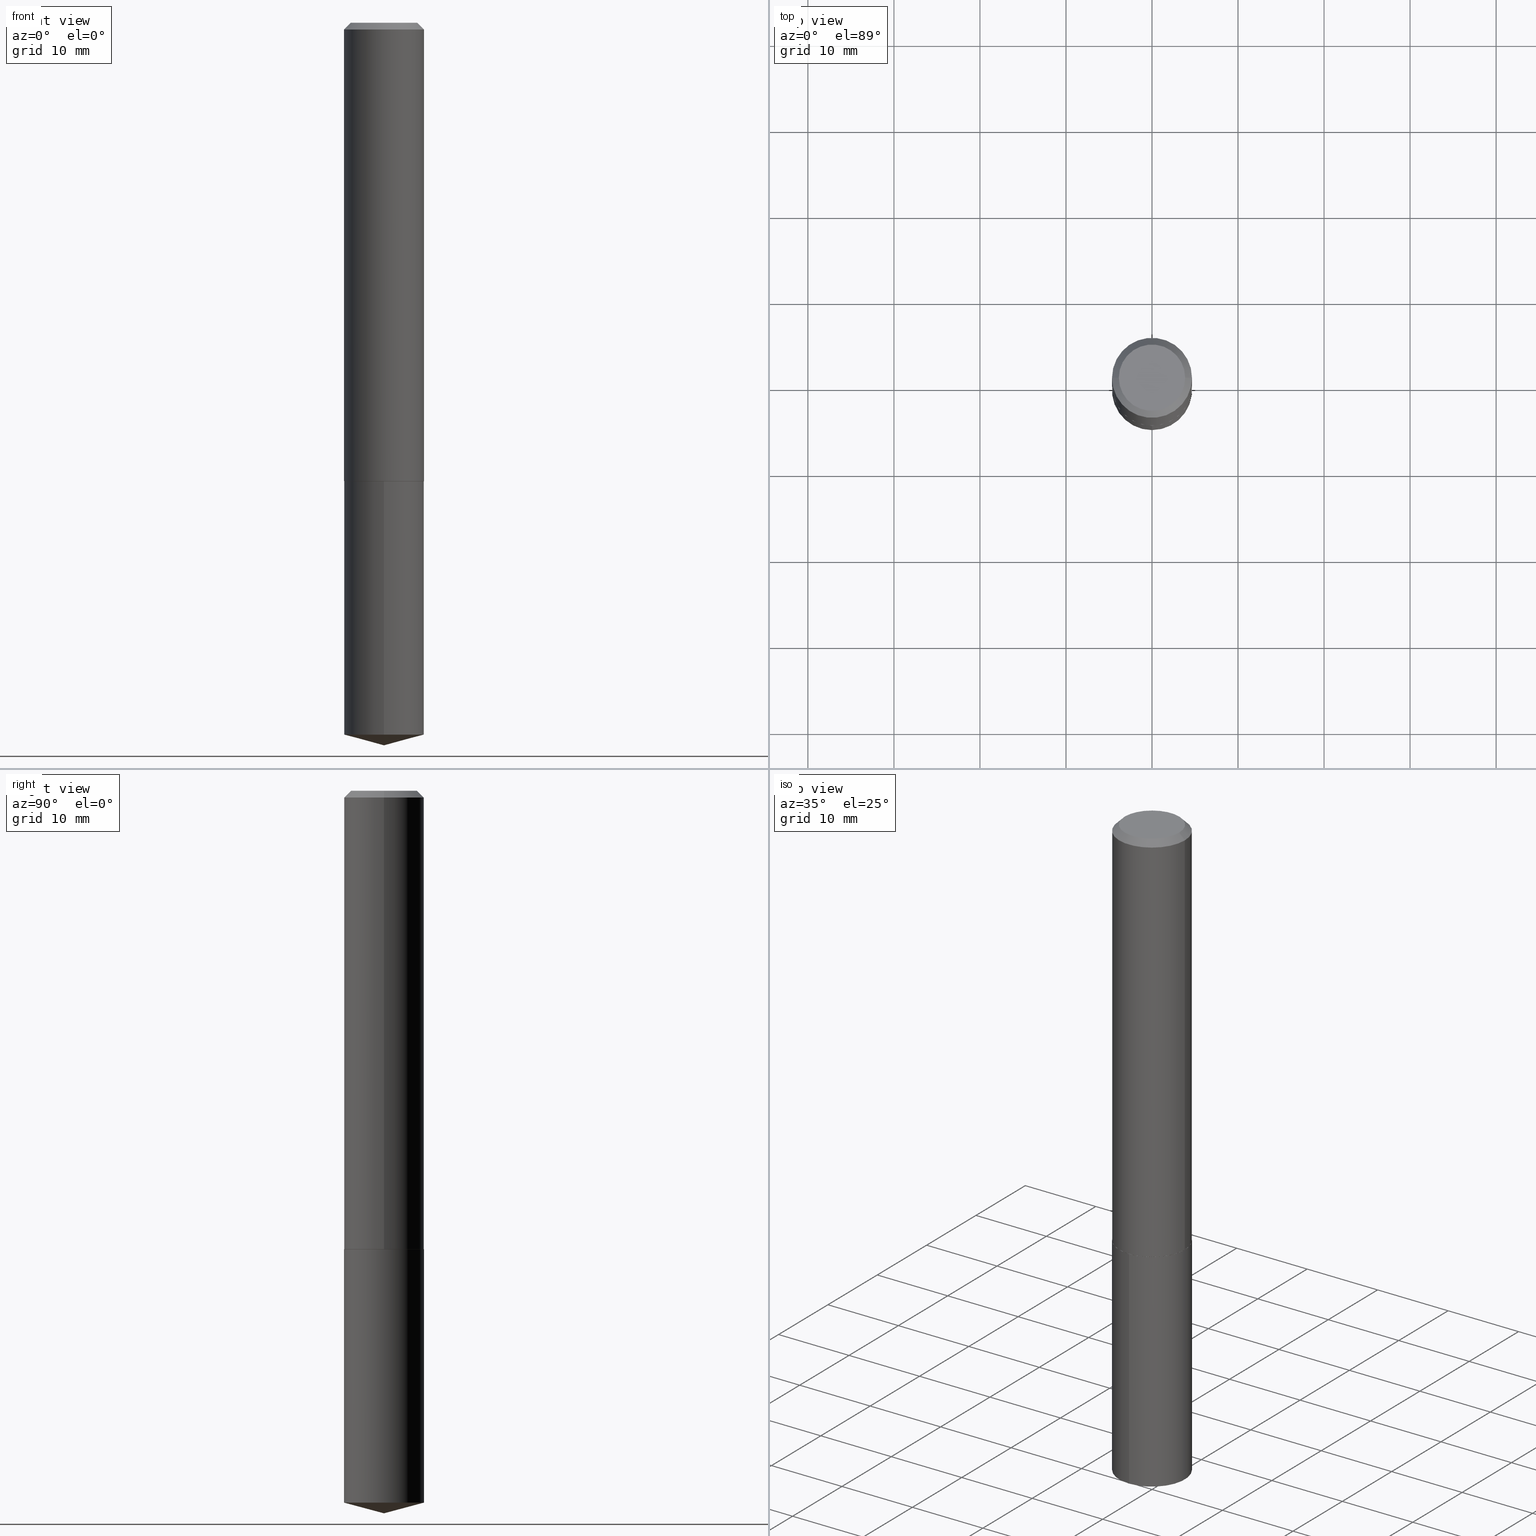
[diagram: canonical four-view strip — front | top / right | iso, engineering-drawing reading convention]
A machine part, canonical four-view strip (front | top / right | iso — engineering-drawing reading convention). The complete STEP part file that produces these views, byte-faithful:
ISO-10303-21;
HEADER;
FILE_DESCRIPTION (( 'STEP AP203' ),
    '1' );
FILE_NAME ('69028.STEP',
    '2024-04-23T14:27:54',
    ( '' ),
    ( '' ),
    'SwSTEP 2.0',
    'SolidWorks 2023',
    '' );
FILE_SCHEMA (( 'CONFIG_CONTROL_DESIGN' ));
ENDSEC;

DATA;
#1 = CYLINDRICAL_SURFACE ( 'NONE', #158, 0.1830499999999999905 ) ;
#2 = ORIENTED_EDGE ( 'NONE', *, *, #215, .F. ) ;
#3 = CIRCLE ( 'NONE', #386, 0.1825500000000003509 ) ;
#4 = ORIENTED_EDGE ( 'NONE', *, *, #27, .F. ) ;
#5 = FACE_OUTER_BOUND ( 'NONE', #187, .T. ) ;
#6 = ORIENTED_EDGE ( 'NONE', *, *, #261, .T. ) ;
#7 = LINE ( 'NONE', #13, #162 ) ;
#8 = CC_DESIGN_PERSON_AND_ORGANIZATION_ASSIGNMENT ( #138, #313, ( #12 ) ) ;
#9 = ADVANCED_FACE ( 'NONE', ( #278 ), #133, .T. ) ;
#10 = AXIS2_PLACEMENT_3D ( 'NONE', #185, #210, #155 ) ;
#11 = EDGE_LOOP ( 'NONE', ( #250, #100, #47, #40 ) ) ;
#12 = SECURITY_CLASSIFICATION ( '', '', #71 ) ;
#13 = CARTESIAN_POINT ( 'NONE',  ( 8.087356642219846075E-29, -1.154675418801469049E-14, -3.307100000000000151 ) ) ;
#14 = APPROVAL_ROLE ( '' ) ;
#15 = ORIENTED_EDGE ( 'NONE', *, *, #127, .T. ) ;
#16 = SHAPE_DEFINITION_REPRESENTATION ( #19, #90 ) ;
#17 = AXIS2_PLACEMENT_3D ( 'NONE', #55, #328, #145 ) ;
#18 = EDGE_LOOP ( 'NONE', ( #68, #388, #221 ) ) ;
#19 = PRODUCT_DEFINITION_SHAPE ( 'NONE', 'NONE',  #189 ) ;
#20 = APPROVAL_DATE_TIME ( #321, #129 ) ;
#21 = DIRECTION ( 'NONE',  ( -0.7071067811869339303, 7.493145998871750444E-15, 0.7071067811861611041 ) ) ;
#22 = DIRECTION ( 'NONE',  ( 1.000000000000000000, -6.982962677686265922E-15, 4.876176775795935793E-29 ) ) ;
#23 = DATE_TIME_ROLE ( 'creation_date' ) ;
#24 = CYLINDRICAL_SURFACE ( 'NONE', #350, 0.1830500000000001015 ) ;
#25 = DIRECTION ( 'NONE',  ( -2.445468806185136877E-29, 3.491481338843145188E-15, 1.000000000000000000 ) ) ;
#26 = CARTESIAN_POINT ( 'NONE',  ( -2.919964657261547595E-48, 4.168935659749483931E-34, 1.194030629168650700E-19 ) ) ;
#27 = EDGE_CURVE ( 'NONE', #374, #193, #247, .T. ) ;
#28 = UNCERTAINTY_MEASURE_WITH_UNIT (LENGTH_MEASURE( 1.000000000000000082E-05 ), #65, 'distance_accuracy_value', 'NONE');
#29 = DIRECTION ( 'NONE',  ( 2.445468806185136597E-29, -3.491481338843145583E-15, -1.000000000000000000 ) ) ;
#30 = AXIS2_PLACEMENT_3D ( 'NONE', #287, #166, #251 ) ;
#31 = DIRECTION ( 'NONE',  ( -2.445468806185136597E-29, 3.491481338843145583E-15, 1.000000000000000000 ) ) ;
#32 = ORIENTED_EDGE ( 'NONE', *, *, #325, .F. ) ;
#33 = EDGE_CURVE ( 'NONE', #97, #220, #7, .T. ) ;
#34 = CARTESIAN_POINT ( 'NONE',  ( 5.130349008495799778E-29, -7.324778700759037341E-15, -2.097900000000000542 ) ) ;
#35 = DIRECTION ( 'NONE',  ( -2.445468806185136597E-29, 3.491481338843145583E-15, 1.000000000000000000 ) ) ;
#36 = EDGE_LOOP ( 'NONE', ( #4, #15, #69, #124 ) ) ;
#37 = ORGANIZATION ( 'UNSPECIFIED', 'UNSPECIFIED', '' ) ;
#38 =( NAMED_UNIT ( * ) SI_UNIT ( $, .STERADIAN. ) SOLID_ANGLE_UNIT ( ) );
#39 = CC_DESIGN_SECURITY_CLASSIFICATION ( #12, ( #95 ) ) ;
#40 = ORIENTED_EDGE ( 'NONE', *, *, #233, .T. ) ;
#41 = EDGE_CURVE ( 'NONE', #265, #365, #115, .T. ) ;
#42 = CARTESIAN_POINT ( 'NONE',  ( 5.130349008495799778E-29, -7.324778700759037341E-15, -2.097900000000000542 ) ) ;
#43 = VECTOR ( 'NONE', #107, 39.37007874015748143 ) ;
#44 = APPROVAL_PERSON_ORGANIZATION ( #246, #129, #222 ) ;
#45 = DIRECTION ( 'NONE',  ( 1.000000000000000000, -6.982962677686266711E-15, 0.000000000000000000 ) ) ;
#46 = PERSON_AND_ORGANIZATION ( #184, #37 ) ;
#47 = ORIENTED_EDGE ( 'NONE', *, *, #359, .T. ) ;
#48 = APPROVAL_ROLE ( '' ) ;
#49 = CARTESIAN_POINT ( 'NONE',  ( -5.839929314523095191E-48, 8.337871319498967861E-34, 2.388061258337301399E-19 ) ) ;
#50 = PERSON_AND_ORGANIZATION_ROLE ( 'creator' ) ;
#51 = AXIS2_PLACEMENT_3D ( 'NONE', #170, #86, #349 ) ;
#52 = CARTESIAN_POINT ( 'NONE',  ( -0.1830500000000002403, -6.024130222950171258E-15, -2.097900000000000542 ) ) ;
#53 = LOCAL_TIME ( 10, 27, 54.00000000000000000, #348 ) ;
#54 = CC_DESIGN_PERSON_AND_ORGANIZATION_ASSIGNMENT ( #372, #341, ( #95 ) ) ;
#55 = CARTESIAN_POINT ( 'NONE',  ( 7.642090019328604414E-31, -1.091087918388490513E-16, -0.03125000000000021511 ) ) ;
#56 = MECHANICAL_CONTEXT ( 'NONE', #369, 'mechanical' ) ;
#57 = CARTESIAN_POINT ( 'NONE',  ( 5.131571742898890337E-29, -7.326524441428456478E-15, -2.098399999999999821 ) ) ;
#58 = CARTESIAN_POINT ( 'NONE',  ( 0.1830500000000001015, -1.278231318150471850E-15, 8.925841588094466461E-30 ) ) ;
#59 = AXIS2_PLACEMENT_3D ( 'NONE', #213, #264, #302 ) ;
#60 = EDGE_CURVE ( 'NONE', #365, #265, #201, .T. ) ;
#61 = DIRECTION ( 'NONE',  ( -2.445468806185136597E-29, 3.491481338843145583E-15, 1.000000000000000000 ) ) ;
#62 = DIRECTION ( 'NONE',  ( -6.982962677686264344E-15, -1.000000000000000000, 2.984810700534567995E-15 ) ) ;
#63 = CARTESIAN_POINT ( 'NONE',  ( -5.839929314523095191E-48, 8.337871319498967861E-34, 2.388061258337301399E-19 ) ) ;
#64 = AXIS2_PLACEMENT_3D ( 'NONE', #76, #199, #316 ) ;
#65 =( CONVERSION_BASED_UNIT ( 'INCH', #211 ) LENGTH_UNIT ( ) NAMED_UNIT ( #259 ) );
#66 = FACE_OUTER_BOUND ( 'NONE', #165, .T. ) ;
#67 = VERTEX_POINT ( 'NONE', #102 ) ;
#68 = ORIENTED_EDGE ( 'NONE', *, *, #33, .F. ) ;
#69 = ORIENTED_EDGE ( 'NONE', *, *, #92, .T. ) ;
#70 = ADVANCED_FACE ( 'NONE', ( #279 ), #345, .T. ) ;
#71 = SECURITY_CLASSIFICATION_LEVEL ( 'unclassified' ) ;
#72 = CIRCLE ( 'NONE', #135, 0.1825500000000003509 ) ;
#73 = DIRECTION ( 'NONE',  ( -2.445528654128284610E-29, 3.491395633182224159E-15, 1.000000000000000000 ) ) ;
#74 = CC_DESIGN_APPROVAL ( #339, ( #95 ) ) ;
#75 = PERSON_AND_ORGANIZATION_ROLE ( 'design_owner' ) ;
#76 = CARTESIAN_POINT ( 'NONE',  ( 0.000000000000000000, 0.000000000000000000, 0.000000000000000000 ) ) ;
#77 = DATE_AND_TIME ( #323, #53 ) ;
#78 = PRODUCT ( '69028', '69028', '', ( #56 ) ) ;
#79 = EDGE_LOOP ( 'NONE', ( #154, #240, #93, #347 ) ) ;
#80 = COORDINATED_UNIVERSAL_TIME_OFFSET ( 5, 0, .BEHIND. ) ;
#81 = CC_DESIGN_PERSON_AND_ORGANIZATION_ASSIGNMENT ( #46, #50, ( #95 ) ) ;
#82 = CIRCLE ( 'NONE', #59, 0.1830499999999999905 ) ;
#83 = CARTESIAN_POINT ( 'NONE',  ( 0.1830500000000000183, -1.387340109989320162E-15, -0.03125000000000021511 ) ) ;
#84 = EDGE_CURVE ( 'NONE', #367, #149, #310, .T. ) ;
#85 = COORDINATED_UNIVERSAL_TIME_OFFSET ( 5, 0, .BEHIND. ) ;
#86 = DIRECTION ( 'NONE',  ( 2.445468806185136597E-29, -3.491481338843145583E-15, -1.000000000000000000 ) ) ;
#87 = DIRECTION ( 'NONE',  ( -2.445528654128284891E-29, 3.491395633182223764E-15, 1.000000000000000000 ) ) ;
#88 = DIRECTION ( 'NONE',  ( -2.445468806185136597E-29, 3.491481338843145583E-15, 1.000000000000000000 ) ) ;
#89 = FACE_OUTER_BOUND ( 'NONE', #217, .T. ) ;
#90 = ADVANCED_BREP_SHAPE_REPRESENTATION ( '69028', ( #276, #266, #30 ), #203 ) ;
#91 = DIRECTION ( 'NONE',  ( -2.445528654128284891E-29, 3.491395633182223764E-15, 1.000000000000000000 ) ) ;
#92 = EDGE_CURVE ( 'NONE', #220, #117, #114, .T. ) ;
#93 = ORIENTED_EDGE ( 'NONE', *, *, #253, .T. ) ;
#94 = AXIS2_PLACEMENT_3D ( 'NONE', #34, #35, #230 ) ;
#95 = PRODUCT_DEFINITION_FORMATION_WITH_SPECIFIED_SOURCE ( 'ANY', '', #78, .NOT_KNOWN. ) ;
#96 = ORIENTED_EDGE ( 'NONE', *, *, #198, .F. ) ;
#97 = VERTEX_POINT ( 'NONE', #354 ) ;
#98 = ADVANCED_FACE ( 'NONE', ( #110 ), #255, .T. ) ;
#99 = APPROVAL_STATUS ( 'not_yet_approved' ) ;
#100 = ORIENTED_EDGE ( 'NONE', *, *, #84, .F. ) ;
#101 = CALENDAR_DATE ( 2024, 23, 4 ) ;
#102 = CARTESIAN_POINT ( 'NONE',  ( -0.1830500000000000183, -2.416295268490077926E-15, -0.03125000000000021511 ) ) ;
#103 = CC_DESIGN_APPROVAL ( #176, ( #12 ) ) ;
#104 = ORIENTED_EDGE ( 'NONE', *, *, #41, .F. ) ;
#105 = PERSON_AND_ORGANIZATION_ROLE ( 'creator' ) ;
#106 = EDGE_CURVE ( 'NONE', #265, #67, #226, .T. ) ;
#107 = DIRECTION ( 'NONE',  ( -2.445468806185136877E-29, 3.491481338843145188E-15, 1.000000000000000000 ) ) ;
#108 = VECTOR ( 'NONE', #229, 39.37007874015748143 ) ;
#109 = AXIS2_PLACEMENT_3D ( 'NONE', #159, #31, #370 ) ;
#110 = FACE_OUTER_BOUND ( 'NONE', #18, .T. ) ;
#111 = LOCAL_TIME ( 10, 27, 54.00000000000000000, #256 ) ;
#112 = DIRECTION ( 'NONE',  ( -1.000000000000000000, 6.982962677686265922E-15, -4.876176775795935793E-29 ) ) ;
#113 = DIRECTION ( 'NONE',  ( -6.982962677686264344E-15, -1.000000000000000000, 2.984810700534567995E-15 ) ) ;
#114 = LINE ( 'NONE', #297, #108 ) ;
#115 = CIRCLE ( 'NONE', #142, 0.1830500000000002403 ) ;
#116 = CARTESIAN_POINT ( 'NONE',  ( 0.1830500000000002403, -8.603010018909510375E-15, -2.097900000000000542 ) ) ;
#117 = VERTEX_POINT ( 'NONE', #206 ) ;
#118 = CC_DESIGN_PERSON_AND_ORGANIZATION_ASSIGNMENT ( #218, #75, ( #78 ) ) ;
#119 = CARTESIAN_POINT ( 'NONE',  ( 0.1830500000000000183, -1.364922950330927901E-15, -0.03125000000000021511 ) ) ;
#120 = ORIENTED_EDGE ( 'NONE', *, *, #198, .T. ) ;
#121 = DIRECTION ( 'NONE',  ( -0.7071067811865454633, 2.468850131082235761E-15, -0.7071067811865493491 ) ) ;
#122 = ADVANCED_FACE ( 'NONE', ( #379 ), #24, .T. ) ;
#123 = CYLINDRICAL_SURFACE ( 'NONE', #10, 0.1830499999999999905 ) ;
#124 = ORIENTED_EDGE ( 'NONE', *, *, #375, .F. ) ;
#125 = CARTESIAN_POINT ( 'NONE',  ( 5.130349008495799778E-29, -7.324778700759037341E-15, -2.097900000000000542 ) ) ;
#126 = CONICAL_SURFACE ( 'NONE', #373, 0.1830500000000000183, 0.7853981633974456145 ) ;
#127 = EDGE_CURVE ( 'NONE', #374, #220, #280, .T. ) ;
#128 = ORIENTED_EDGE ( 'NONE', *, *, #106, .T. ) ;
#129 = APPROVAL ( #99, 'UNSPECIFIED' ) ;
#130 = ORIENTED_EDGE ( 'NONE', *, *, #223, .F. ) ;
#131 = CALENDAR_DATE ( 2024, 23, 4 ) ;
#132 = ORIENTED_EDGE ( 'NONE', *, *, #127, .F. ) ;
#133 = CONICAL_SURFACE ( 'NONE', #356, 0.1830500000000002403, 0.7853981633979947308 ) ;
#134 = COORDINATED_UNIVERSAL_TIME_OFFSET ( 5, 0, .BEHIND. ) ;
#135 = AXIS2_PLACEMENT_3D ( 'NONE', #355, #88, #146 ) ;
#136 = ORIENTED_EDGE ( 'NONE', *, *, #60, .F. ) ;
#137 = CC_DESIGN_APPROVAL ( #129, ( #189 ) ) ;
#138 = PERSON_AND_ORGANIZATION ( #184, #37 ) ;
#139 = DIRECTION ( 'NONE',  ( -2.445468806185136597E-29, 3.491481338843145583E-15, 1.000000000000000000 ) ) ;
#140 = CARTESIAN_POINT ( 'NONE',  ( 0.000000000000000000, 0.000000000000000000, 0.000000000000000000 ) ) ;
#141 = APPROVAL_DATE_TIME ( #77, #339 ) ;
#142 = AXIS2_PLACEMENT_3D ( 'NONE', #125, #314, #284 ) ;
#143 = CONICAL_SURFACE ( 'NONE', #177, 146.9311341562559505, 1.308996938995748760 ) ;
#144 = DIRECTION ( 'NONE',  ( 1.000000000000000000, -6.982962677686265922E-15, 0.000000000000000000 ) ) ;
#145 = DIRECTION ( 'NONE',  ( 1.000000000000000000, -6.982962677686266711E-15, 0.000000000000000000 ) ) ;
#146 = DIRECTION ( 'NONE',  ( 1.000000000000000000, -6.982962677686265922E-15, 0.000000000000000000 ) ) ;
#147 = DIRECTION ( 'NONE',  ( -2.445528654128284891E-29, 3.491395633182223764E-15, 1.000000000000000000 ) ) ;
#148 = CIRCLE ( 'NONE', #286, 0.1830499999999999905 ) ;
#149 = VERTEX_POINT ( 'NONE', #383 ) ;
#150 = CC_DESIGN_DATE_AND_TIME_ASSIGNMENT ( #317, #23, ( #189 ) ) ;
#151 = ADVANCED_FACE ( 'NONE', ( #258 ), #335, .T. ) ;
#152 = APPROVAL_PERSON_ORGANIZATION ( #282, #339, #14 ) ;
#153 = CARTESIAN_POINT ( 'NONE',  ( 5.131571742898891458E-29, -7.326524441428458056E-15, -2.098400000000000709 ) ) ;
#154 = ORIENTED_EDGE ( 'NONE', *, *, #277, .F. ) ;
#155 = DIRECTION ( 'NONE',  ( -6.982962677686264344E-15, -1.000000000000000000, 2.984810700534567995E-15 ) ) ;
#156 = ORIENTED_EDGE ( 'NONE', *, *, #245, .F. ) ;
#157 = FACE_OUTER_BOUND ( 'NONE', #11, .T. ) ;
#158 = AXIS2_PLACEMENT_3D ( 'NONE', #304, #91, #62 ) ;
#159 = CARTESIAN_POINT ( 'NONE',  ( 7.642090019328604414E-31, -1.091087918388490513E-16, -0.03125000000000021511 ) ) ;
#160 = VERTEX_POINT ( 'NONE', #205 ) ;
#161 = DIRECTION ( 'NONE',  ( 1.000000000000000000, -6.982962677686266711E-15, 0.000000000000000000 ) ) ;
#162 = VECTOR ( 'NONE', #308, 39.37007874015748854 ) ;
#163 = CONICAL_SURFACE ( 'NONE', #94, 0.1830500000000002403, 0.7853981633979947308 ) ;
#164 = CARTESIAN_POINT ( 'NONE',  ( 1.300648477808914204E-15, 0.1830499999999926353, -2.098400000000001153 ) ) ;
#165 = EDGE_LOOP ( 'NONE', ( #6, #192, #32, #281 ) ) ;
#166 = DIRECTION ( 'NONE',  ( 0.000000000000000000, 0.000000000000000000, 1.000000000000000000 ) ) ;
#167 = VERTEX_POINT ( 'NONE', #83 ) ;
#168 = ADVANCED_FACE ( 'NONE', ( #89 ), #288, .F. ) ;
#169 = CIRCLE ( 'NONE', #17, 0.1830500000000000183 ) ;
#170 = CARTESIAN_POINT ( 'NONE',  ( 7.642090019328604414E-31, -1.091087918388490513E-16, -0.03125000000000021511 ) ) ;
#171 = LOCAL_TIME ( 10, 27, 54.00000000000000000, #134 ) ;
#172 = CARTESIAN_POINT ( 'NONE',  ( -8.819317344719817740E-28, 1.259099466481703146E-13, 36.06297874015748306 ) ) ;
#173 = DATE_AND_TIME ( #101, #171 ) ;
#174 = ADVANCED_FACE ( 'NONE', ( #318 ), #291, .F. ) ;
#175 = DIRECTION ( 'NONE',  ( 1.000000000000000000, -6.982962677686266711E-15, 4.876168073847652343E-29 ) ) ;
#176 = APPROVAL ( #315, 'UNSPECIFIED' ) ;
#177 = AXIS2_PLACEMENT_3D ( 'NONE', #172, #262, #301 ) ;
#178 = PLANE ( 'NONE',  #191 ) ;
#179 = CARTESIAN_POINT ( 'NONE',  ( -0.1830500000000001015, 1.300648477808864112E-15, -9.004110682711610994E-30 ) ) ;
#180 = DIRECTION ( 'NONE',  ( -6.982962677686264344E-15, -1.000000000000000000, 2.984810700534567995E-15 ) ) ;
#181 = EDGE_CURVE ( 'NONE', #160, #265, #381, .T. ) ;
#182 = CARTESIAN_POINT ( 'NONE',  ( 8.087610014530734022E-29, -1.154639449849693227E-14, -3.307100000000000151 ) ) ;
#183 = AXIS2_PLACEMENT_3D ( 'NONE', #384, #87, #358 ) ;
#184 = PERSON ( 'UNSPECIFIED', 'UNSPECIFIED', 'UNSPECIFIED', ('UNSPECIFIED'), ('UNSPECIFIED'), ('UNSPECIFIED') ) ;
#185 = CARTESIAN_POINT ( 'NONE',  ( 5.131571742898891458E-29, -7.326524441428458056E-15, -2.098400000000000709 ) ) ;
#186 = LINE ( 'NONE', #116, #327 ) ;
#187 = EDGE_LOOP ( 'NONE', ( #361, #120, #216, #104 ) ) ;
#188 = CC_DESIGN_PERSON_AND_ORGANIZATION_ASSIGNMENT ( #352, #105, ( #189 ) ) ;
#189 = PRODUCT_DEFINITION ( 'UNKNOWN', '', #95, #351 ) ;
#190 = CARTESIAN_POINT ( 'NONE',  ( -0.1830500000000002403, -6.024130222950171258E-15, -2.097900000000000542 ) ) ;
#191 = AXIS2_PLACEMENT_3D ( 'NONE', #26, #228, #112 ) ;
#192 = ORIENTED_EDGE ( 'NONE', *, *, #27, .T. ) ;
#193 = VERTEX_POINT ( 'NONE', #322 ) ;
#194 = ADVANCED_FACE ( 'NONE', ( #353 ), #178, .F. ) ;
#195 = ORIENTED_EDGE ( 'NONE', *, *, #33, .T. ) ;
#196 = CIRCLE ( 'NONE', #320, 0.1830499999999999905 ) ;
#197 = EDGE_LOOP ( 'NONE', ( #307, #271 ) ) ;
#198 = EDGE_CURVE ( 'NONE', #160, #336, #3, .T. ) ;
#199 = DIRECTION ( 'NONE',  ( -2.445468806185136597E-29, 3.491481338843145583E-15, 1.000000000000000000 ) ) ;
#200 = ORIENTED_EDGE ( 'NONE', *, *, #233, .F. ) ;
#201 = CIRCLE ( 'NONE', #385, 0.1830500000000002403 ) ;
#202 = CALENDAR_DATE ( 2024, 23, 4 ) ;
#203 =( GEOMETRIC_REPRESENTATION_CONTEXT ( 3 ) GLOBAL_UNCERTAINTY_ASSIGNED_CONTEXT ( ( #28 ) ) GLOBAL_UNIT_ASSIGNED_CONTEXT ( ( #65, #364, #38 ) ) REPRESENTATION_CONTEXT ( 'NONE', 'WORKASPACE' ) );
#204 = DIRECTION ( 'NONE',  ( 2.445528654128284330E-29, -3.491395633182224159E-15, -1.000000000000000000 ) ) ;
#205 = CARTESIAN_POINT ( 'NONE',  ( -0.1825500000000003509, -6.026779450124281670E-15, -2.098399999999999821 ) ) ;
#206 = CARTESIAN_POINT ( 'NONE',  ( -1.278231318150419588E-15, -0.1830500000000073180, -2.098399999999999821 ) ) ;
#207 = VECTOR ( 'NONE', #121, 39.37007874015748854 ) ;
#208 = FACE_OUTER_BOUND ( 'NONE', #269, .T. ) ;
#209 = PRODUCT_RELATED_PRODUCT_CATEGORY ( 'detail', '', ( #78 ) ) ;
#210 = DIRECTION ( 'NONE',  ( -2.445528654128284891E-29, 3.491395633182223764E-15, 1.000000000000000000 ) ) ;
#211 = LENGTH_MEASURE_WITH_UNIT ( LENGTH_MEASURE( 0.02539999999999999897 ), #362 );
#212 = DIRECTION ( 'NONE',  ( -1.000000000000000000, 6.982962677686266711E-15, 0.000000000000000000 ) ) ;
#213 = CARTESIAN_POINT ( 'NONE',  ( 7.967533693959178083E-29, -1.137532802223631787E-14, -3.258051900325483530 ) ) ;
#214 = VECTOR ( 'NONE', #275, 39.37007874015748854 ) ;
#215 = EDGE_CURVE ( 'NONE', #336, #160, #72, .T. ) ;
#216 = ORIENTED_EDGE ( 'NONE', *, *, #245, .T. ) ;
#217 = EDGE_LOOP ( 'NONE', ( #237, #377 ) ) ;
#218 = PERSON_AND_ORGANIZATION ( #184, #37 ) ;
#219 = DIRECTION ( 'NONE',  ( -2.445468806185136597E-29, 3.491481338843145583E-15, 1.000000000000000000 ) ) ;
#220 = VERTEX_POINT ( 'NONE', #227 ) ;
#221 = ORIENTED_EDGE ( 'NONE', *, *, #261, .F. ) ;
#222 = APPROVAL_ROLE ( '' ) ;
#223 = EDGE_CURVE ( 'NONE', #365, #167, #252, .T. ) ;
#224 = DIRECTION ( 'NONE',  ( -2.445528654128284891E-29, 3.491395633182223764E-15, 1.000000000000000000 ) ) ;
#225 = AXIS2_PLACEMENT_3D ( 'NONE', #49, #61, #175 ) ;
#226 = LINE ( 'NONE', #179, #43 ) ;
#227 = CARTESIAN_POINT ( 'NONE',  ( -1.278231318150391386E-15, -0.1830500000000113425, -3.258051900325483086 ) ) ;
#228 = DIRECTION ( 'NONE',  ( 2.438088387897960049E-29, -3.491481338843145188E-15, -1.000000000000000000 ) ) ;
#229 = DIRECTION ( 'NONE',  ( -2.445528654128284610E-29, 3.491395633182224159E-15, 1.000000000000000000 ) ) ;
#230 = DIRECTION ( 'NONE',  ( 1.000000000000000000, -6.982962677686266711E-15, 0.000000000000000000 ) ) ;
#231 = ORIENTED_EDGE ( 'NONE', *, *, #253, .F. ) ;
#232 = CARTESIAN_POINT ( 'NONE',  ( -0.1517999999999999627, 1.114568130392198594E-15, 2.388061258261264241E-19 ) ) ;
#233 = EDGE_CURVE ( 'NONE', #67, #167, #169, .T. ) ;
#234 = ORIENTED_EDGE ( 'NONE', *, *, #60, .T. ) ;
#235 = CARTESIAN_POINT ( 'NONE',  ( 0.1825500000000003509, -8.601264278240086505E-15, -2.098399999999999821 ) ) ;
#236 = ORIENTED_EDGE ( 'NONE', *, *, #106, .F. ) ;
#237 = ORIENTED_EDGE ( 'NONE', *, *, #325, .T. ) ;
#238 = EDGE_LOOP ( 'NONE', ( #236, #368, #371, #200 ) ) ;
#239 = ADVANCED_FACE ( 'NONE', ( #208 ), #143, .T. ) ;
#240 = ORIENTED_EDGE ( 'NONE', *, *, #267, .T. ) ;
#241 = LOCAL_TIME ( 10, 27, 54.00000000000000000, #85 ) ;
#242 = ORIENTED_EDGE ( 'NONE', *, *, #181, .T. ) ;
#243 = DIRECTION ( 'NONE',  ( 1.000000000000000000, -6.982962677686266711E-15, 4.876168073847652343E-29 ) ) ;
#244 = ORIENTED_EDGE ( 'NONE', *, *, #215, .T. ) ;
#245 = EDGE_CURVE ( 'NONE', #336, #365, #186, .T. ) ;
#246 = PERSON_AND_ORGANIZATION ( #184, #37 ) ;
#247 = LINE ( 'NONE', #164, #285 ) ;
#248 = APPROVAL_STATUS ( 'not_yet_approved' ) ;
#249 = LOCAL_TIME ( 10, 27, 54.00000000000000000, #80 ) ;
#250 = ORIENTED_EDGE ( 'NONE', *, *, #267, .F. ) ;
#251 = DIRECTION ( 'NONE',  ( 1.000000000000000000, 0.000000000000000000, 0.000000000000000000 ) ) ;
#252 = LINE ( 'NONE', #58, #294 ) ;
#253 = EDGE_CURVE ( 'NONE', #167, #67, #343, .T. ) ;
#254 = DIRECTION ( 'NONE',  ( -2.445468806185136597E-29, 3.491481338843145583E-15, 1.000000000000000000 ) ) ;
#255 = CONICAL_SURFACE ( 'NONE', #183, 146.9311341562559505, 1.308996938995748760 ) ;
#256 = COORDINATED_UNIVERSAL_TIME_OFFSET ( 5, 0, .BEHIND. ) ;
#257 = VECTOR ( 'NONE', #21, 39.37007874015748143 ) ;
#258 = FACE_OUTER_BOUND ( 'NONE', #79, .T. ) ;
#259 = DIMENSIONAL_EXPONENTS ( 1.000000000000000000, 0.000000000000000000, 0.000000000000000000, 0.000000000000000000, 0.000000000000000000, 0.000000000000000000, 0.000000000000000000 ) ;
#260 = DIRECTION ( 'NONE',  ( -2.438088387897960049E-29, 3.491481338843145188E-15, 1.000000000000000000 ) ) ;
#261 = EDGE_CURVE ( 'NONE', #220, #374, #82, .T. ) ;
#262 = DIRECTION ( 'NONE',  ( -2.445528654128284891E-29, 3.491395633182223764E-15, 1.000000000000000000 ) ) ;
#263 = AXIS2_PLACEMENT_3D ( 'NONE', #293, #224, #113 ) ;
#264 = DIRECTION ( 'NONE',  ( -2.445528654128284891E-29, 3.491395633182223764E-15, 1.000000000000000000 ) ) ;
#265 = VERTEX_POINT ( 'NONE', #190 ) ;
#266 = MANIFOLD_SOLID_BREP ( 'Body-Move/Copy2[2]', #303 ) ;
#267 = EDGE_CURVE ( 'NONE', #149, #167, #268, .T. ) ;
#268 = LINE ( 'NONE', #119, #273 ) ;
#269 = EDGE_LOOP ( 'NONE', ( #342, #195, #132 ) ) ;
#270 = FACE_OUTER_BOUND ( 'NONE', #36, .T. ) ;
#271 = ORIENTED_EDGE ( 'NONE', *, *, #277, .T. ) ;
#272 = CARTESIAN_POINT ( 'NONE',  ( 5.131571742898891458E-29, -7.326524441428458056E-15, -2.098400000000000709 ) ) ;
#273 = VECTOR ( 'NONE', #332, 39.37007874015748854 ) ;
#274 = EDGE_LOOP ( 'NONE', ( #234, #128, #231, #130 ) ) ;
#275 = DIRECTION ( 'NONE',  ( 6.863315791527694259E-15, 0.9659258262890696445, 0.2588190451025158545 ) ) ;
#276 = MANIFOLD_SOLID_BREP ( 'Body-Move/Copy2[1]', #366 ) ;
#277 = EDGE_CURVE ( 'NONE', #149, #367, #312, .T. ) ;
#278 = FACE_OUTER_BOUND ( 'NONE', #340, .T. ) ;
#279 = FACE_OUTER_BOUND ( 'NONE', #274, .T. ) ;
#280 = CIRCLE ( 'NONE', #263, 0.1830499999999999905 ) ;
#281 = ORIENTED_EDGE ( 'NONE', *, *, #92, .F. ) ;
#282 = PERSON_AND_ORGANIZATION ( #184, #37 ) ;
#283 = DIRECTION ( 'NONE',  ( -2.445468806185136597E-29, 3.491481338843145583E-15, 1.000000000000000000 ) ) ;
#284 = DIRECTION ( 'NONE',  ( 1.000000000000000000, -6.982962677686266711E-15, 0.000000000000000000 ) ) ;
#285 = VECTOR ( 'NONE', #73, 39.37007874015748143 ) ;
#286 = AXIS2_PLACEMENT_3D ( 'NONE', #272, #147, #180 ) ;
#287 = CARTESIAN_POINT ( 'NONE',  ( 0.000000000000000000, 0.000000000000000000, 0.000000000000000000 ) ) ;
#288 = PLANE ( 'NONE',  #357 ) ;
#289 = ADVANCED_FACE ( 'NONE', ( #5 ), #163, .T. ) ;
#290 = APPROVAL_DATE_TIME ( #346, #176 ) ;
#291 = PLANE ( 'NONE',  #299 ) ;
#292 = APPLICATION_PROTOCOL_DEFINITION ( 'international standard', 'config_control_design', 1994, #390 ) ;
#293 = CARTESIAN_POINT ( 'NONE',  ( 7.967533693959178083E-29, -1.137532802223631787E-14, -3.258051900325483530 ) ) ;
#294 = VECTOR ( 'NONE', #25, 39.37007874015748143 ) ;
#295 = EDGE_CURVE ( 'NONE', #97, #374, #300, .T. ) ;
#296 = DIRECTION ( 'NONE',  ( 1.000000000000000000, -6.982962677686266711E-15, 4.876176775795936353E-29 ) ) ;
#297 = CARTESIAN_POINT ( 'NONE',  ( -1.278231318150419588E-15, -0.1830500000000073180, -2.098399999999999821 ) ) ;
#298 = LINE ( 'NONE', #333, #207 ) ;
#299 = AXIS2_PLACEMENT_3D ( 'NONE', #382, #260, #22 ) ;
#300 = LINE ( 'NONE', #182, #214 ) ;
#301 = DIRECTION ( 'NONE',  ( -6.982962677686265133E-15, -1.000000000000000000, 3.510303681827617951E-15 ) ) ;
#302 = DIRECTION ( 'NONE',  ( -6.982962677686264344E-15, -1.000000000000000000, 2.984810700534567995E-15 ) ) ;
#303 = CLOSED_SHELL ( 'NONE', ( #151, #70, #9, #174, #289, #122, #319, #194 ) ) ;
#304 = CARTESIAN_POINT ( 'NONE',  ( 5.131571742898891458E-29, -7.326524441428458056E-15, -2.098400000000000709 ) ) ;
#305 = EDGE_LOOP ( 'NONE', ( #2, #96 ) ) ;
#306 = APPROVAL_PERSON_ORGANIZATION ( #344, #176, #48 ) ;
#307 = ORIENTED_EDGE ( 'NONE', *, *, #84, .T. ) ;
#308 = DIRECTION ( 'NONE',  ( -6.745023994389839133E-15, -0.9659258262890676461, 0.2588190451025225713 ) ) ;
#309 = ADVANCED_FACE ( 'NONE', ( #66 ), #123, .T. ) ;
#310 = CIRCLE ( 'NONE', #225, 0.1517999999999999627 ) ;
#311 = CARTESIAN_POINT ( 'NONE',  ( 5.130349008495799778E-29, -7.324778700759037341E-15, -2.097900000000000542 ) ) ;
#312 = CIRCLE ( 'NONE', #331, 0.1517999999999999627 ) ;
#313 = PERSON_AND_ORGANIZATION_ROLE ( 'classification_officer' ) ;
#314 = DIRECTION ( 'NONE',  ( -2.445468806185136597E-29, 3.491481338843145583E-15, 1.000000000000000000 ) ) ;
#315 = APPROVAL_STATUS ( 'not_yet_approved' ) ;
#316 = DIRECTION ( 'NONE',  ( 1.000000000000000000, -6.982962677686266711E-15, 4.876176775795936353E-29 ) ) ;
#317 = DATE_AND_TIME ( #380, #111 ) ;
#318 = FACE_OUTER_BOUND ( 'NONE', #305, .T. ) ;
#319 = ADVANCED_FACE ( 'NONE', ( #157 ), #126, .T. ) ;
#320 = AXIS2_PLACEMENT_3D ( 'NONE', #153, #360, #329 ) ;
#321 = DATE_AND_TIME ( #131, #241 ) ;
#322 = CARTESIAN_POINT ( 'NONE',  ( 1.300648477808942800E-15, 0.1830499999999926630, -2.098400000000001153 ) ) ;
#323 = CALENDAR_DATE ( 2024, 23, 4 ) ;
#324 = CARTESIAN_POINT ( 'NONE',  ( 5.131571742898891458E-29, -7.326524441428458056E-15, -2.098400000000000709 ) ) ;
#325 = EDGE_CURVE ( 'NONE', #117, #193, #196, .T. ) ;
#326 = DIRECTION ( 'NONE',  ( 6.982962677686265922E-15, 1.000000000000000000, -3.491395633182224159E-15 ) ) ;
#327 = VECTOR ( 'NONE', #334, 39.37007874015748143 ) ;
#328 = DIRECTION ( 'NONE',  ( -2.445468806185136597E-29, 3.491481338843145583E-15, 1.000000000000000000 ) ) ;
#329 = DIRECTION ( 'NONE',  ( -6.982962677686264344E-15, -1.000000000000000000, 2.984810700534567995E-15 ) ) ;
#330 = DIRECTION ( 'NONE',  ( -2.445468806185136597E-29, 3.491481338843145583E-15, 1.000000000000000000 ) ) ;
#331 = AXIS2_PLACEMENT_3D ( 'NONE', #63, #330, #243 ) ;
#332 = DIRECTION ( 'NONE',  ( 0.7071067811865454633, -7.319954787623246579E-15, -0.7071067811865493491 ) ) ;
#333 = CARTESIAN_POINT ( 'NONE',  ( -0.1830500000000000183, 1.169122526311622158E-15, -0.03125000000000021511 ) ) ;
#334 = DIRECTION ( 'NONE',  ( 0.7071067811869339303, -2.468850131086304311E-15, 0.7071067811861611041 ) ) ;
#335 = CONICAL_SURFACE ( 'NONE', #51, 0.1830500000000000183, 0.7853981633974456145 ) ;
#336 = VERTEX_POINT ( 'NONE', #235 ) ;
#337 = ADVANCED_FACE ( 'NONE', ( #270 ), #1, .T. ) ;
#338 = CC_DESIGN_DATE_AND_TIME_ASSIGNMENT ( #173, #378, ( #12 ) ) ;
#339 = APPROVAL ( #248, 'UNSPECIFIED' ) ;
#340 = EDGE_LOOP ( 'NONE', ( #244, #242, #136, #156 ) ) ;
#341 = PERSON_AND_ORGANIZATION_ROLE ( 'design_supplier' ) ;
#342 = ORIENTED_EDGE ( 'NONE', *, *, #295, .F. ) ;
#343 = CIRCLE ( 'NONE', #109, 0.1830500000000000183 ) ;
#344 = PERSON_AND_ORGANIZATION ( #184, #37 ) ;
#345 = CYLINDRICAL_SURFACE ( 'NONE', #64, 0.1830500000000001015 ) ;
#346 = DATE_AND_TIME ( #202, #249 ) ;
#347 = ORIENTED_EDGE ( 'NONE', *, *, #359, .F. ) ;
#348 = COORDINATED_UNIVERSAL_TIME_OFFSET ( 5, 0, .BEHIND. ) ;
#349 = DIRECTION ( 'NONE',  ( -1.000000000000000000, 6.982962677686266711E-15, 0.000000000000000000 ) ) ;
#350 = AXIS2_PLACEMENT_3D ( 'NONE', #140, #254, #296 ) ;
#351 = DESIGN_CONTEXT ( 'detailed design', #390, 'design' ) ;
#352 = PERSON_AND_ORGANIZATION ( #184, #37 ) ;
#353 = FACE_OUTER_BOUND ( 'NONE', #197, .T. ) ;
#354 = CARTESIAN_POINT ( 'NONE',  ( 8.087607812067652060E-29, -1.154639449849693227E-14, -3.307100000000000151 ) ) ;
#355 = CARTESIAN_POINT ( 'NONE',  ( 5.131571742898890337E-29, -7.326524441428456478E-15, -2.098399999999999821 ) ) ;
#356 = AXIS2_PLACEMENT_3D ( 'NONE', #311, #219, #45 ) ;
#357 = AXIS2_PLACEMENT_3D ( 'NONE', #324, #204, #326 ) ;
#358 = DIRECTION ( 'NONE',  ( -6.982962677686265133E-15, -1.000000000000000000, 3.510303681827617951E-15 ) ) ;
#359 = EDGE_CURVE ( 'NONE', #367, #67, #298, .T. ) ;
#360 = DIRECTION ( 'NONE',  ( -2.445528654128284891E-29, 3.491395633182223764E-15, 1.000000000000000000 ) ) ;
#361 = ORIENTED_EDGE ( 'NONE', *, *, #181, .F. ) ;
#362 =( LENGTH_UNIT ( ) NAMED_UNIT ( * ) SI_UNIT ( $, .METRE. ) );
#363 = CARTESIAN_POINT ( 'NONE',  ( 0.1830500000000002403, -8.603010018909510375E-15, -2.097900000000000542 ) ) ;
#364 =( NAMED_UNIT ( * ) PLANE_ANGLE_UNIT ( ) SI_UNIT ( $, .RADIAN. ) );
#365 = VERTEX_POINT ( 'NONE', #363 ) ;
#366 = CLOSED_SHELL ( 'NONE', ( #309, #98, #239, #337, #168 ) ) ;
#367 = VERTEX_POINT ( 'NONE', #232 ) ;
#368 = ORIENTED_EDGE ( 'NONE', *, *, #41, .T. ) ;
#369 = APPLICATION_CONTEXT ( 'configuration controlled 3d designs of mechanical parts and assemblies' ) ;
#370 = DIRECTION ( 'NONE',  ( 1.000000000000000000, -6.982962677686266711E-15, 0.000000000000000000 ) ) ;
#371 = ORIENTED_EDGE ( 'NONE', *, *, #223, .T. ) ;
#372 = PERSON_AND_ORGANIZATION ( #184, #37 ) ;
#373 = AXIS2_PLACEMENT_3D ( 'NONE', #387, #29, #212 ) ;
#374 = VERTEX_POINT ( 'NONE', #389 ) ;
#375 = EDGE_CURVE ( 'NONE', #193, #117, #148, .T. ) ;
#376 = APPLICATION_PROTOCOL_DEFINITION ( 'international standard', 'config_control_design', 1994, #369 ) ;
#377 = ORIENTED_EDGE ( 'NONE', *, *, #375, .T. ) ;
#378 = DATE_TIME_ROLE ( 'classification_date' ) ;
#379 = FACE_OUTER_BOUND ( 'NONE', #238, .T. ) ;
#380 = CALENDAR_DATE ( 2024, 23, 4 ) ;
#381 = LINE ( 'NONE', #52, #257 ) ;
#382 = CARTESIAN_POINT ( 'NONE',  ( 7.324390268875162502E-29, -4.186283504750789390E-15, -2.098400000000000265 ) ) ;
#383 = CARTESIAN_POINT ( 'NONE',  ( 0.1517999999999999627, -1.203173273196323170E-15, 2.388061258416432083E-19 ) ) ;
#384 = CARTESIAN_POINT ( 'NONE',  ( -8.819317344719817740E-28, 1.259099466481703146E-13, 36.06297874015748306 ) ) ;
#385 = AXIS2_PLACEMENT_3D ( 'NONE', #42, #283, #161 ) ;
#386 = AXIS2_PLACEMENT_3D ( 'NONE', #57, #139, #144 ) ;
#387 = CARTESIAN_POINT ( 'NONE',  ( 7.642090019328604414E-31, -1.091087918388490513E-16, -0.03125000000000021511 ) ) ;
#388 = ORIENTED_EDGE ( 'NONE', *, *, #295, .T. ) ;
#389 = CARTESIAN_POINT ( 'NONE',  ( 1.300648477808942800E-15, 0.1830499999999886107, -3.258051900325484418 ) ) ;
#390 = APPLICATION_CONTEXT ( 'configuration controlled 3d designs of mechanical parts and assemblies' ) ;
ENDSEC;
END-ISO-10303-21;
